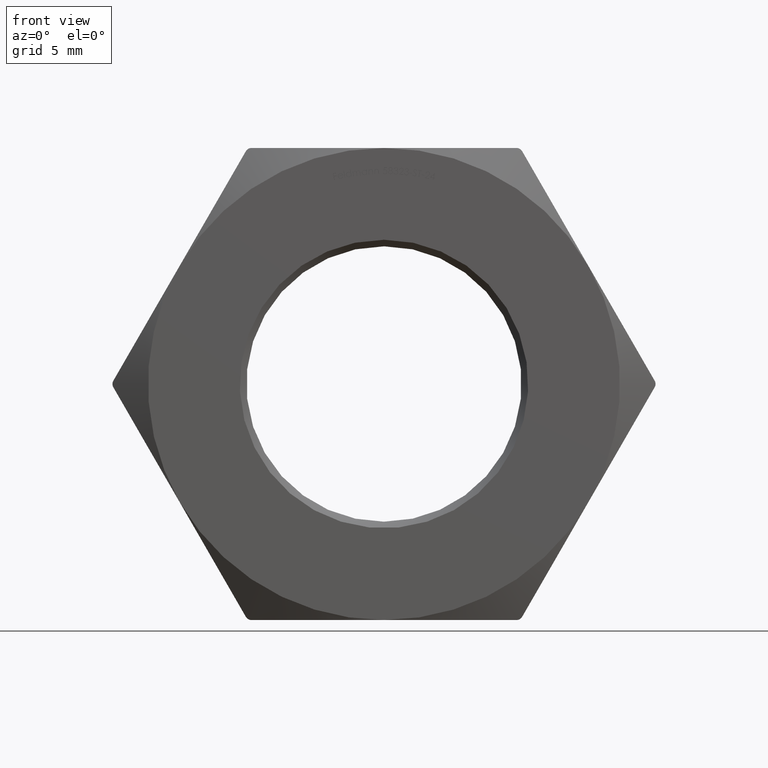
[diagram: clean part render]
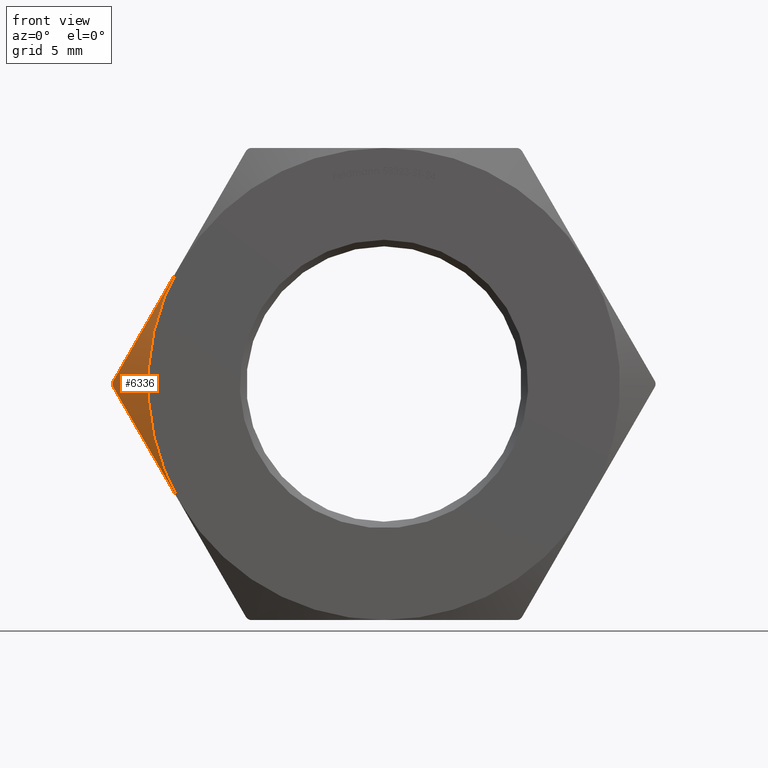
[diagram: same view with one face highlighted and labeled with its STEP entity id]
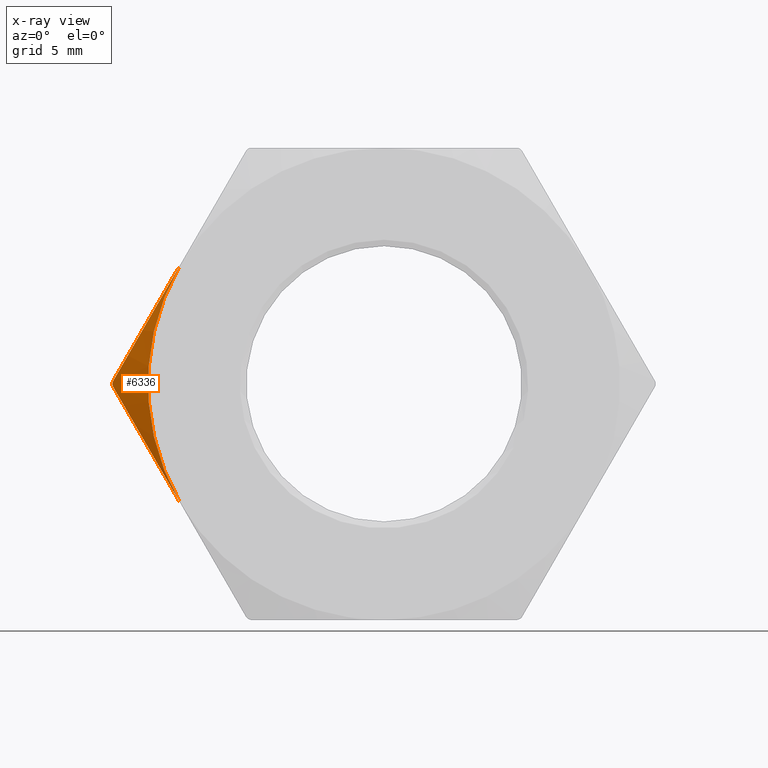
[diagram: x-ray of the same camera — body ghosted, the highlighted face saturated]
A machine part, front view. The second image highlights one B-rep face of the part: STEP entity #6336.
The next image is the same camera in x-ray: the body ghosted, the highlighted face saturated — about 0% of this face is hidden behind the body in this view.
In plain terms, the highlighted conical surface has half-angle 60 deg.
Its self-contained STEP definition (entity closure, byte-faithful):
#13 = CARTESIAN_POINT ( 'NONE',  ( -19.81562494357227777, -3.940851841110034393, -1.678330814003637483 ) ) ;
#223 = ORIENTED_EDGE ( 'NONE', *, *, #15148, .T. ) ;
#654 = ORIENTED_EDGE ( 'NONE', *, *, #8230, .F. ) ;
#844 = CARTESIAN_POINT ( 'NONE',  ( -15.58845726811989429, -5.000000000000000000, 9.000000000000000000 ) ) ;
#1095 = EDGE_CURVE ( 'NONE', #6381, #12371, #5755, .T. ) ;
#2436 = CARTESIAN_POINT ( 'NONE',  ( -15.80269449085430722, -5.000000000000000888, -8.628930245351547512 ) ) ;
#2485 = CARTESIAN_POINT ( 'NONE',  ( -18.98413308608382621, -4.324295589834002307, -3.118516957253466337 ) ) ;
#2554 = VERTEX_POINT ( 'NONE', #6256 ) ;
#2578 = CARTESIAN_POINT ( 'NONE',  ( -17.72221016899749202, -4.722150001668016905, -5.304231564882512906 ) ) ;
#2817 = CARTESIAN_POINT ( 'NONE',  ( -20.68318184697179163, -3.450511656493093327, -0.1756781788588816506 ) ) ;
#3341 = CARTESIAN_POINT ( 'NONE',  ( -18.98092775833401546, -4.325605780329642158, 3.124068747771047150 ) ) ;
#4159 = CIRCLE ( 'NONE', #12178, 17.99999999999999645 ) ;
#4883 = CARTESIAN_POINT ( 'NONE',  ( -15.58845726811989429, -5.000000000000000000, -8.999999999999998224 ) ) ;
#4941 = CONICAL_SURFACE ( 'NONE', #7423, 18.00000000000000000, 1.047197551196603404 ) ;
#5755 = B_SPLINE_CURVE_WITH_KNOTS ( 'NONE', 3,
 ( #4883, #2436, #7331, #6181, #13443, #7280, #2578, #2485, #13, #10808 ),
 .UNSPECIFIED., .F., .F.,
 ( 4, 2, 2, 2, 4 ),
 ( 0.01051554819734979405, 0.01178791190731938270, 0.01306027561728896787, 0.01560500303722813994, 0.02069445787710647716 ),
 .UNSPECIFIED. ) ;
#6181 = CARTESIAN_POINT ( 'NONE',  ( -16.44668568854905288, -4.955776413173641259, -7.513504771317093933 ) ) ;
#6256 = CARTESIAN_POINT ( 'NONE',  ( -15.58845726811989429, -5.000000000000000000, 9.000000000000000000 ) ) ;
#6336 = ADVANCED_FACE ( 'NONE', ( #6819 ), #4941, .T. ) ;
#6381 = VERTEX_POINT ( 'NONE', #11892 ) ;
#6524 = CARTESIAN_POINT ( 'NONE',  ( -20.64027212352911889, -3.474764084930114905, -0.2499999999999978351 ) ) ;
#6819 = FACE_OUTER_BOUND ( 'NONE', #15477, .T. ) ;
#6951 = CARTESIAN_POINT ( 'NONE',  ( -20.64027212352925744, -3.474764084930035857, 0.2499999999997561118 ) ) ;
#7280 = CARTESIAN_POINT ( 'NONE',  ( -17.29911597758647446, -4.825147480787584264, -6.037052200793663559 ) ) ;
#7331 = CARTESIAN_POINT ( 'NONE',  ( -16.01798673103118986, -4.991100823725132862, -8.256033146889855345 ) ) ;
#7423 = AXIS2_PLACEMENT_3D ( 'NONE', #12953, #8226, #9309 ) ;
#7525 = CARTESIAN_POINT ( 'NONE',  ( -20.70717893252963648, -3.437008392479885543, 0.08860865200605319569 ) ) ;
#7537 = CARTESIAN_POINT ( 'NONE',  ( 9.549475979406495715E-17, -5.000000000000000000, 5.954463929516699050E-16 ) ) ;
#7651 = ORIENTED_EDGE ( 'NONE', *, *, #12650, .F. ) ;
#8073 = CARTESIAN_POINT ( 'NONE',  ( -19.81360279745487318, -3.941994751156223220, 1.681833273819301589 ) ) ;
#8226 = DIRECTION ( 'NONE',  ( -1.909895195881299143E-17, 1.000000000000000000, -0.000000000000000000 ) ) ;
#8230 = EDGE_CURVE ( 'NONE', #2554, #6381, #4159, .T. ) ;
#8837 = B_SPLINE_CURVE_WITH_KNOTS ( 'NONE', 3,
 ( #6951, #8073, #3341, #10536, #9367, #844 ),
 .UNSPECIFIED., .F., .F.,
 ( 4, 2, 4 ),
 ( 0.0002977047320976027901, 0.005406626464723699940, 0.01051554819734979752 ),
 .UNSPECIFIED. ) ;
#8851 = CARTESIAN_POINT ( 'NONE',  ( -20.64027212352911889, -3.474764084930114905, -0.2499999999999978351 ) ) ;
#9309 = DIRECTION ( 'NONE',  ( 1.000000000000000000, 0.000000000000000000, 0.000000000000000000 ) ) ;
#9367 = CARTESIAN_POINT ( 'NONE',  ( -16.44868394276425505, -5.000000000000003553, 7.510043693489953931 ) ) ;
#9827 = DIRECTION ( 'NONE',  ( -0.000000000000000000, -1.000000000000000000, -0.000000000000000000 ) ) ;
#9968 = ORIENTED_EDGE ( 'NONE', *, *, #1095, .F. ) ;
#10085 = CARTESIAN_POINT ( 'NONE',  ( -20.70733949605147473, -3.436917929465525212, -0.08769794612803137601 ) ) ;
#10536 = CARTESIAN_POINT ( 'NONE',  ( -17.29852708824104468, -4.855426502465721050, 6.038072187059994711 ) ) ;
#10808 = CARTESIAN_POINT ( 'NONE',  ( -20.64027212352911889, -3.474764084930114905, -0.2499999999999978351 ) ) ;
#11093 = VERTEX_POINT ( 'NONE', #13449 ) ;
#11892 = CARTESIAN_POINT ( 'NONE',  ( -15.58845726811989429, -5.000000000000000000, -8.999999999999998224 ) ) ;
#12178 = AXIS2_PLACEMENT_3D ( 'NONE', #7537, #9827, #13530 ) ;
#12371 = VERTEX_POINT ( 'NONE', #8851 ) ;
#12382 = CARTESIAN_POINT ( 'NONE',  ( -20.64027212352925744, -3.474764084930035857, 0.2499999999997561118 ) ) ;
#12578 = B_SPLINE_CURVE_WITH_KNOTS ( 'NONE', 3,
 ( #12382, #13733, #7525, #10085, #2817, #6524 ),
 .UNSPECIFIED., .F., .F.,
 ( 4, 2, 4 ),
 ( 2.746530905111593069E-16, 0.0002639256828971733035, 0.0005278513657940719786 ),
 .UNSPECIFIED. ) ;
#12650 = EDGE_CURVE ( 'NONE', #11093, #2554, #8837, .T. ) ;
#12953 = CARTESIAN_POINT ( 'NONE',  ( 9.549475979406495715E-17, -5.000000000000000000, 0.000000000000000000 ) ) ;
#13443 = CARTESIAN_POINT ( 'NONE',  ( -16.66031262789973511, -4.929390122363204618, -7.143492058496288877 ) ) ;
#13449 = CARTESIAN_POINT ( 'NONE',  ( -20.64027212352925744, -3.474764084930035857, 0.2499999999997561118 ) ) ;
#13530 = DIRECTION ( 'NONE',  ( 0.000000000000000000, 0.000000000000000000, 1.000000000000000000 ) ) ;
#13733 = CARTESIAN_POINT ( 'NONE',  ( -20.68316535159769742, -3.450520979621841011, 0.1757067496845737264 ) ) ;
#15148 = EDGE_CURVE ( 'NONE', #11093, #12371, #12578, .T. ) ;
#15477 = EDGE_LOOP ( 'NONE', ( #7651, #223, #9968, #654 ) ) ;